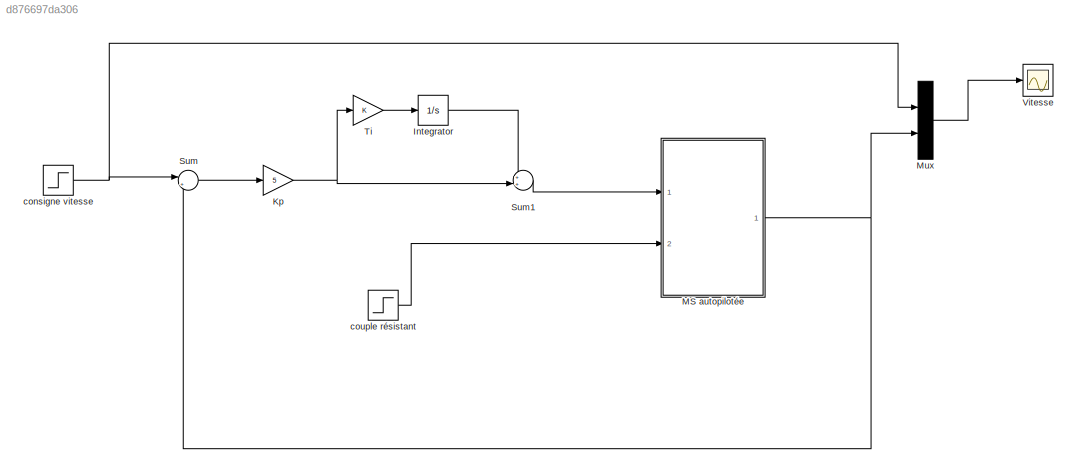
MODEL slx_d876697da306
KIND model
CONFIG AbsTol = auto
CONFIG EnableMultiTasking = off
CONFIG FixedStep = auto
CONFIG InitFcn = TP3_config
CONFIG MaxStep = auto
CONFIG MinStep = auto
CONFIG RelTol = 1e-3
CONFIG SampleTimeConstraint = Unconstrained
CONFIG Solver = ode23t
CONFIG SolverName = ode23t
CONFIG StartTime = 0.0
CONFIG StopTime = 30
BLOCK [Integrator] Integrator
  Ports = [1, 1]
BLOCK [Gain] Kp 
  Gain = 5
  OutDataTypeStr = Inherit: Inherit via internal rule
  ParamDataTypeStr = Inherit: Inherit via internal rule
  SaturateOnIntegerOverflow = off
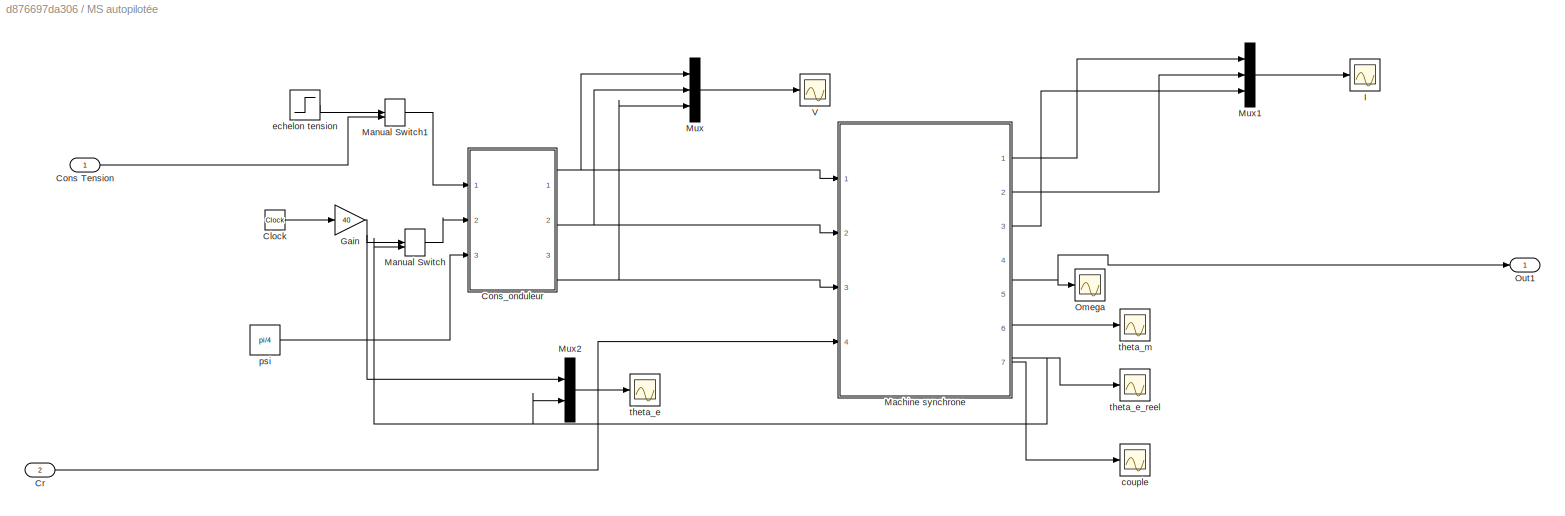
BLOCK [SubSystem] MS autopilotée
  Ports = [2, 1]
  RequestExecContextInheritance = off
  Variant = off
BLOCK [Clock] MS autopilotée/Clock
BLOCK [Inport] MS autopilotée/Cons Tension
  IconDisplay = Port number
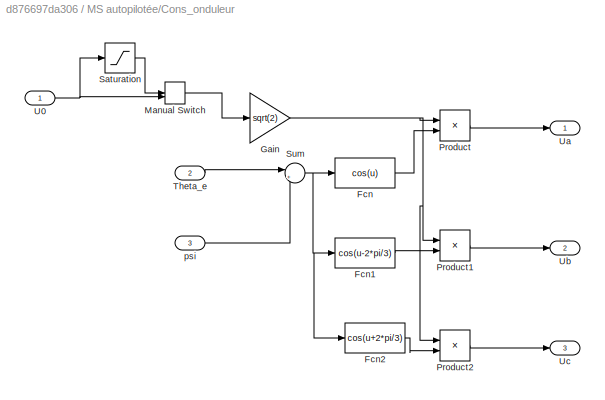
BLOCK [SubSystem] MS autopilotée/Cons_onduleur 
  Ports = [3, 3]
  RequestExecContextInheritance = off
  Variant = off
BLOCK [Fcn] MS autopilotée/Cons_onduleur /Fcn
  Expr = cos(u)
BLOCK [Fcn] MS autopilotée/Cons_onduleur /Fcn1
  Expr = cos(u-2*pi/3)
BLOCK [Fcn] MS autopilotée/Cons_onduleur /Fcn2
  Expr = cos(u+2*pi/3)
BLOCK [Gain] MS autopilotée/Cons_onduleur /Gain
  Gain = sqrt(2)
  OutDataTypeStr = Inherit: Inherit via internal rule
  ParamDataTypeStr = Inherit: Inherit via internal rule
  SaturateOnIntegerOverflow = off
BLOCK [ManualSwitch] MS autopilotée/Cons_onduleur /Manual Switch
BLOCK [Product] MS autopilotée/Cons_onduleur /Product
  InputSameDT = off
  OutDataTypeStr = Inherit: Inherit via internal rule
  Ports = [2, 1]
  RndMeth = Floor
  SaturateOnIntegerOverflow = off
BLOCK [Product] MS autopilotée/Cons_onduleur /Product1
  InputSameDT = off
  OutDataTypeStr = Inherit: Inherit via internal rule
  Ports = [2, 1]
  RndMeth = Floor
  SaturateOnIntegerOverflow = off
BLOCK [Product] MS autopilotée/Cons_onduleur /Product2
  InputSameDT = off
  OutDataTypeStr = Inherit: Inherit via internal rule
  Ports = [2, 1]
  RndMeth = Floor
  SaturateOnIntegerOverflow = off
BLOCK [Saturate] MS autopilotée/Cons_onduleur /Saturation
  InputPortMap = u0
  LowerLimit = -220
  Ports = [1, 1]
  UpperLimit = 220
BLOCK [Sum] MS autopilotée/Cons_onduleur /Sum
  IconShape = round
  InputSameDT = off
  Inputs = |+-
  OutDataTypeStr = Inherit: Inherit via internal rule
  Ports = [2, 1]
  SaturateOnIntegerOverflow = off
BLOCK [Inport] MS autopilotée/Cons_onduleur /Theta_e
  IconDisplay = Port number
  Port = 2
BLOCK [Inport] MS autopilotée/Cons_onduleur /U0
  IconDisplay = Port number
BLOCK [Outport] MS autopilotée/Cons_onduleur /Ua
  IconDisplay = Port number
BLOCK [Outport] MS autopilotée/Cons_onduleur /Ub
  IconDisplay = Port number
  Port = 2
BLOCK [Outport] MS autopilotée/Cons_onduleur /Uc
  IconDisplay = Port number
  Port = 3
BLOCK [Inport] MS autopilotée/Cons_onduleur /psi
  IconDisplay = Port number
  Port = 3
BLOCK [Inport] MS autopilotée/Cr
  IconDisplay = Port number
  Port = 2
BLOCK [Gain] MS autopilotée/Gain
  Gain = 40
  OutDataTypeStr = Inherit: Inherit via internal rule
  ParamDataTypeStr = Inherit: Inherit via internal rule
  SaturateOnIntegerOverflow = off
BLOCK [Scope] MS autopilotée/I
  NumInputPorts = 1
  Ports = [1]
  ScopeSpecificationString = Simulink.scopes.TimeScopeBlockCfg('CurrentConfiguration', extmgr.ConfigurationSet(extmgr.Configuration('Core','General UI',true),extmgr.Configuration('Core','Source UI',true),extmgr.Configuration('Sources','WiredSimulink',true,'DataLoggingVariableName','ScopeData3'),extmgr.Configuration('Visuals','Time Domain',true,'SerializedDisplays',{struct('MinYLimReal','-74.44182','MaxYLimReal','72.92075','YL...<+1484ch>
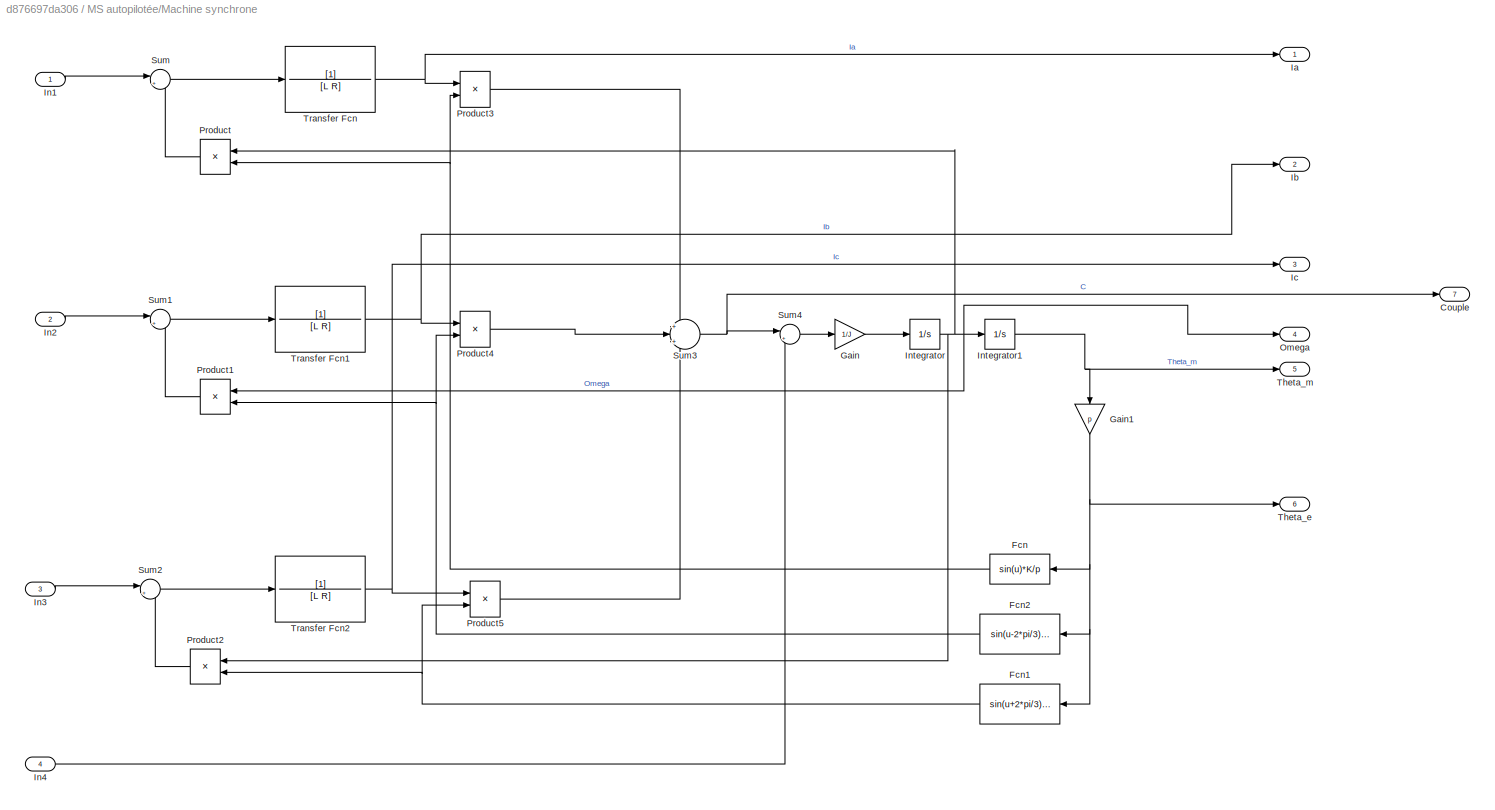
BLOCK [SubSystem] MS autopilotée/Machine synchrone
  Ports = [4, 7]
  RequestExecContextInheritance = off
  Variant = off
BLOCK [Outport] MS autopilotée/Machine synchrone/Couple
  IconDisplay = Port number
  Port = 7
BLOCK [Fcn] MS autopilotée/Machine synchrone/Fcn
  Expr = sin(u)*K/p
BLOCK [Fcn] MS autopilotée/Machine synchrone/Fcn1
  Expr = sin(u+2*pi/3)*K/p
BLOCK [Fcn] MS autopilotée/Machine synchrone/Fcn2
  Expr = sin(u-2*pi/3)*K/p
BLOCK [Gain] MS autopilotée/Machine synchrone/Gain
  Gain = 1/J
  OutDataTypeStr = Inherit: Inherit via internal rule
  ParamDataTypeStr = Inherit: Inherit via internal rule
  SaturateOnIntegerOverflow = off
BLOCK [Gain] MS autopilotée/Machine synchrone/Gain1
  Gain = p
  OutDataTypeStr = Inherit: Inherit via internal rule
  ParamDataTypeStr = Inherit: Inherit via internal rule
  SaturateOnIntegerOverflow = off
BLOCK [Outport] MS autopilotée/Machine synchrone/Ia
  IconDisplay = Port number
BLOCK [Outport] MS autopilotée/Machine synchrone/Ib
  IconDisplay = Port number
  Port = 2
BLOCK [Outport] MS autopilotée/Machine synchrone/Ic
  IconDisplay = Port number
  Port = 3
BLOCK [Inport] MS autopilotée/Machine synchrone/In1
  IconDisplay = Port number
BLOCK [Inport] MS autopilotée/Machine synchrone/In2
  IconDisplay = Port number
  Port = 2
BLOCK [Inport] MS autopilotée/Machine synchrone/In3
  IconDisplay = Port number
  Port = 3
BLOCK [Inport] MS autopilotée/Machine synchrone/In4
  IconDisplay = Port number
  Port = 4
BLOCK [Integrator] MS autopilotée/Machine synchrone/Integrator
  Ports = [1, 1]
BLOCK [Integrator] MS autopilotée/Machine synchrone/Integrator1
  Ports = [1, 1]
BLOCK [Outport] MS autopilotée/Machine synchrone/Omega
  IconDisplay = Port number
  Port = 4
BLOCK [Product] MS autopilotée/Machine synchrone/Product
  InputSameDT = off
  OutDataTypeStr = Inherit: Inherit via internal rule
  Ports = [2, 1]
  RndMeth = Floor
  SaturateOnIntegerOverflow = off
BLOCK [Product] MS autopilotée/Machine synchrone/Product1
  InputSameDT = off
  OutDataTypeStr = Inherit: Inherit via internal rule
  Ports = [2, 1]
  RndMeth = Floor
  SaturateOnIntegerOverflow = off
BLOCK [Product] MS autopilotée/Machine synchrone/Product2
  InputSameDT = off
  OutDataTypeStr = Inherit: Inherit via internal rule
  Ports = [2, 1]
  RndMeth = Floor
  SaturateOnIntegerOverflow = off
BLOCK [Product] MS autopilotée/Machine synchrone/Product3
  InputSameDT = off
  OutDataTypeStr = Inherit: Inherit via internal rule
  Ports = [2, 1]
  RndMeth = Floor
  SaturateOnIntegerOverflow = off
BLOCK [Product] MS autopilotée/Machine synchrone/Product4
  InputSameDT = off
  OutDataTypeStr = Inherit: Inherit via internal rule
  Ports = [2, 1]
  RndMeth = Floor
  SaturateOnIntegerOverflow = off
BLOCK [Product] MS autopilotée/Machine synchrone/Product5
  InputSameDT = off
  OutDataTypeStr = Inherit: Inherit via internal rule
  Ports = [2, 1]
  RndMeth = Floor
  SaturateOnIntegerOverflow = off
BLOCK [Sum] MS autopilotée/Machine synchrone/Sum
  IconShape = round
  InputSameDT = off
  Inputs = |+-
  OutDataTypeStr = Inherit: Inherit via internal rule
  Ports = [2, 1]
  SaturateOnIntegerOverflow = off
BLOCK [Sum] MS autopilotée/Machine synchrone/Sum1
  IconShape = round
  InputSameDT = off
  Inputs = |+-
  OutDataTypeStr = Inherit: Inherit via internal rule
  Ports = [2, 1]
  SaturateOnIntegerOverflow = off
BLOCK [Sum] MS autopilotée/Machine synchrone/Sum2
  IconShape = round
  InputSameDT = off
  Inputs = |+-
  OutDataTypeStr = Inherit: Inherit via internal rule
  Ports = [2, 1]
  SaturateOnIntegerOverflow = off
BLOCK [Sum] MS autopilotée/Machine synchrone/Sum3
  IconShape = round
  InputSameDT = off
  Inputs = +|+|+
  OutDataTypeStr = Inherit: Inherit via internal rule
  Ports = [3, 1]
  SaturateOnIntegerOverflow = off
BLOCK [Sum] MS autopilotée/Machine synchrone/Sum4
  IconShape = round
  InputSameDT = off
  Inputs = |+-
  OutDataTypeStr = Inherit: Inherit via internal rule
  Ports = [2, 1]
  SaturateOnIntegerOverflow = off
BLOCK [Outport] MS autopilotée/Machine synchrone/Theta_e 
  IconDisplay = Port number
  Port = 6
BLOCK [Outport] MS autopilotée/Machine synchrone/Theta_m
  IconDisplay = Port number
  Port = 5
BLOCK [TransferFcn] MS autopilotée/Machine synchrone/Transfer Fcn
  Denominator = [L R]
BLOCK [TransferFcn] MS autopilotée/Machine synchrone/Transfer Fcn1
  Denominator = [L R]
BLOCK [TransferFcn] MS autopilotée/Machine synchrone/Transfer Fcn2
  Denominator = [L R]
BLOCK [ManualSwitch] MS autopilotée/Manual Switch
  CurrentSetting = 0
BLOCK [ManualSwitch] MS autopilotée/Manual Switch1
  CurrentSetting = 0
BLOCK [Mux] MS autopilotée/Mux
  DisplayOption = bar
  Inputs = 3
  Ports = [3, 1]
BLOCK [Mux] MS autopilotée/Mux1
  DisplayOption = bar
  Inputs = 3
  Ports = [3, 1]
BLOCK [Mux] MS autopilotée/Mux2
  DisplayOption = bar
  Inputs = 2
  Ports = [2, 1]
BLOCK [Scope] MS autopilotée/Omega
  NumInputPorts = 1
  Ports = [1]
  ScopeSpecificationString = Simulink.scopes.TimeScopeBlockCfg('CurrentConfiguration', extmgr.ConfigurationSet(extmgr.Configuration('Core','General UI',true),extmgr.Configuration('Core','Source UI',true),extmgr.Configuration('Sources','WiredSimulink',true,'DataLoggingVariableName','ScopeData1'),extmgr.Configuration('Visuals','Time Domain',true,'SerializedDisplays',{struct('MinYLimReal','-1.27685','MaxYLimReal','11.49163','YLa...<+1413ch>
BLOCK [Outport] MS autopilotée/Out1
  IconDisplay = Port number
BLOCK [Scope] MS autopilotée/V
  NumInputPorts = 1
  Ports = [1]
  ScopeSpecificationString = Simulink.scopes.TimeScopeBlockCfg('CurrentConfiguration', extmgr.ConfigurationSet(extmgr.Configuration('Core','General UI',true),extmgr.Configuration('Core','Source UI',true),extmgr.Configuration('Sources','WiredSimulink',true,'DataLoggingVariableName','ScopeData5'),extmgr.Configuration('Visuals','Time Domain',true,'SerializedDisplays',{struct('MinYLimReal','-83.60297','MaxYLimReal','69.04024','YL...<+1472ch>
BLOCK [Scope] MS autopilotée/couple
  NumInputPorts = 1
  Ports = [1]
  ScopeSpecificationString = Simulink.scopes.TimeScopeBlockCfg('CurrentConfiguration', extmgr.ConfigurationSet(extmgr.Configuration('Core','General UI',true),extmgr.Configuration('Core','Source UI',true),extmgr.Configuration('Sources','WiredSimulink',true,'DataLoggingVariableName','ScopeData2'),extmgr.Configuration('Visuals','Time Domain',true,'SerializedDisplays',{struct('MinYLimReal','-0.07436','MaxYLimReal','0.66861','YLab...<+1405ch>
BLOCK [Step] MS autopilotée/echelon tension
  SampleTime = 0
  Time = 0
BLOCK [Constant] MS autopilotée/psi
  Value = pi/4
BLOCK [Scope] MS autopilotée/theta_e
  NumInputPorts = 1
  Ports = [1]
  ScopeSpecificationString = Simulink.scopes.TimeScopeBlockCfg('CurrentConfiguration', extmgr.ConfigurationSet(extmgr.Configuration('Core','General UI',true),extmgr.Configuration('Core','Source UI',true),extmgr.Configuration('Sources','WiredSimulink',true,'DataLoggingVariableName','ScopeData2'),extmgr.Configuration('Visuals','Time Domain',true,'SerializedDisplays',{struct('MinYLimReal','-149.96844','MaxYLimReal','1349.71592',...<+1454ch>
BLOCK [Scope] MS autopilotée/theta_e_reel
  NumInputPorts = 1
  Ports = [1]
  ScopeSpecificationString = Simulink.scopes.TimeScopeBlockCfg('CurrentConfiguration', extmgr.ConfigurationSet(extmgr.Configuration('Core','General UI',true),extmgr.Configuration('Core','Source UI',true),extmgr.Configuration('Sources','WiredSimulink',true,'DataLoggingVariableName','ScopeData1'),extmgr.Configuration('Visuals','Time Domain',true,'SerializedDisplays',{struct('MinYLimReal','-109.84554','MaxYLimReal','988.60987','...<+1419ch>
BLOCK [Scope] MS autopilotée/theta_m
  NumInputPorts = 1
  Ports = [1]
  ScopeSpecificationString = Simulink.scopes.TimeScopeBlockCfg('CurrentConfiguration', extmgr.ConfigurationSet(extmgr.Configuration('Core','General UI',true),extmgr.Configuration('Core','Source UI',true),extmgr.Configuration('Sources','WiredSimulink',true),extmgr.Configuration('Visuals','Time Domain',true,'SerializedDisplays',{struct('MinYLimReal','-10.45354','MaxYLimReal','94.08186','YLabelReal','','MinYLimMag','0.00000','Ma...<+1351ch>
BLOCK [Mux] Mux
  DisplayOption = bar
  Inputs = 2
  Ports = [2, 1]
BLOCK [Sum] Sum
  IconShape = round
  InputSameDT = off
  Inputs = |+-
  OutDataTypeStr = Inherit: Inherit via internal rule
  Ports = [2, 1]
  SaturateOnIntegerOverflow = off
BLOCK [Sum] Sum1
  IconShape = round
  InputSameDT = off
  Inputs = ++|
  OutDataTypeStr = Inherit: Inherit via internal rule
  Ports = [2, 1]
  SaturateOnIntegerOverflow = off
BLOCK [Gain] Ti 
  OutDataTypeStr = Inherit: Inherit via internal rule
  ParamDataTypeStr = Inherit: Inherit via internal rule
  SaturateOnIntegerOverflow = off
BLOCK [Scope] Vitesse
  NumInputPorts = 1
  Ports = [1]
  ScopeSpecificationString = Simulink.scopes.TimeScopeBlockCfg('CurrentConfiguration', extmgr.ConfigurationSet(extmgr.Configuration('Core','General UI',true),extmgr.Configuration('Core','Source UI',true),extmgr.Configuration('Sources','WiredSimulink',true,'DataLoggingVariableName','ScopeData3'),extmgr.Configuration('Visuals','Time Domain',true,'SerializedDisplays',{struct('MinYLimReal','-1.27685','MaxYLimReal','11.49163','YLa...<+1449ch>
BLOCK [Step] consigne vitesse
  After = 10
  SampleTime = 0
  Time = 0
BLOCK [Step] couple résistant
  After = 20
  SampleTime = 0
  Time = 3
LINE Integrator:1 -> Sum1:1
NET Kp :1 -> Sum1:2, Ti :1
LINE MS autopilotée/Clock:1 -> MS autopilotée/Gain:1
LINE MS autopilotée/Cons Tension:1 -> MS autopilotée/Manual Switch1:2
LINE MS autopilotée/Cons_onduleur /Fcn1:1 -> MS autopilotée/Cons_onduleur /Product1:2
LINE MS autopilotée/Cons_onduleur /Fcn2:1 -> MS autopilotée/Cons_onduleur /Product2:2
LINE MS autopilotée/Cons_onduleur /Fcn:1 -> MS autopilotée/Cons_onduleur /Product:2
NET MS autopilotée/Cons_onduleur /Gain:1 -> MS autopilotée/Cons_onduleur /Product1:1, MS autopilotée/Cons_onduleur /Product2:1, MS autopilotée/Cons_onduleur /Product:1
LINE MS autopilotée/Cons_onduleur /Manual Switch:1 -> MS autopilotée/Cons_onduleur /Gain:1
LINE MS autopilotée/Cons_onduleur /Product1:1 -> MS autopilotée/Cons_onduleur /Ub:1
LINE MS autopilotée/Cons_onduleur /Product2:1 -> MS autopilotée/Cons_onduleur /Uc:1
LINE MS autopilotée/Cons_onduleur /Product:1 -> MS autopilotée/Cons_onduleur /Ua:1
LINE MS autopilotée/Cons_onduleur /Saturation:1 -> MS autopilotée/Cons_onduleur /Manual Switch:1
NET MS autopilotée/Cons_onduleur /Sum:1 -> MS autopilotée/Cons_onduleur /Fcn1:1, MS autopilotée/Cons_onduleur /Fcn2:1, MS autopilotée/Cons_onduleur /Fcn:1
LINE MS autopilotée/Cons_onduleur /Theta_e:1 -> MS autopilotée/Cons_onduleur /Sum:1
NET MS autopilotée/Cons_onduleur /U0:1 -> MS autopilotée/Cons_onduleur /Manual Switch:2, MS autopilotée/Cons_onduleur /Saturation:1
LINE MS autopilotée/Cons_onduleur /psi:1 -> MS autopilotée/Cons_onduleur /Sum:2
NET MS autopilotée/Cons_onduleur :1 -> MS autopilotée/Machine synchrone:1, MS autopilotée/Mux:1
NET MS autopilotée/Cons_onduleur :2 -> MS autopilotée/Machine synchrone:2, MS autopilotée/Mux:2
NET MS autopilotée/Cons_onduleur :3 -> MS autopilotée/Machine synchrone:3, MS autopilotée/Mux:3
LINE MS autopilotée/Cr:1 -> MS autopilotée/Machine synchrone:4
NET MS autopilotée/Gain:1 -> MS autopilotée/Manual Switch:1, MS autopilotée/Mux2:1
NET MS autopilotée/Machine synchrone/Fcn1:1 -> MS autopilotée/Machine synchrone/Product2:2, MS autopilotée/Machine synchrone/Product5:2
NET MS autopilotée/Machine synchrone/Fcn2:1 -> MS autopilotée/Machine synchrone/Product1:2, MS autopilotée/Machine synchrone/Product4:2
NET MS autopilotée/Machine synchrone/Fcn:1 -> MS autopilotée/Machine synchrone/Product3:2, MS autopilotée/Machine synchrone/Product:2
NET MS autopilotée/Machine synchrone/Gain1:1 -> MS autopilotée/Machine synchrone/Fcn1:1, MS autopilotée/Machine synchrone/Fcn2:1, MS autopilotée/Machine synchrone/Fcn:1, MS autopilotée/Machine synchrone/Theta_e :1
LINE MS autopilotée/Machine synchrone/Gain:1 -> MS autopilotée/Machine synchrone/Integrator:1
LINE MS autopilotée/Machine synchrone/In1:1 -> MS autopilotée/Machine synchrone/Sum:1
LINE MS autopilotée/Machine synchrone/In2:1 -> MS autopilotée/Machine synchrone/Sum1:1
LINE MS autopilotée/Machine synchrone/In3:1 -> MS autopilotée/Machine synchrone/Sum2:1
LINE MS autopilotée/Machine synchrone/In4:1 -> MS autopilotée/Machine synchrone/Sum4:2
NET MS autopilotée/Machine synchrone/Integrator1:1 -> MS autopilotée/Machine synchrone/Gain1:1, MS autopilotée/Machine synchrone/Theta_m:1
NET MS autopilotée/Machine synchrone/Integrator:1 -> MS autopilotée/Machine synchrone/Integrator1:1, MS autopilotée/Machine synchrone/Omega:1, MS autopilotée/Machine synchrone/Product1:1, MS autopilotée/Machine synchrone/Product2:1, MS autopilotée/Machine synchrone/Product:1
LINE MS autopilotée/Machine synchrone/Product1:1 -> MS autopilotée/Machine synchrone/Sum1:2
LINE MS autopilotée/Machine synchrone/Product2:1 -> MS autopilotée/Machine synchrone/Sum2:2
LINE MS autopilotée/Machine synchrone/Product3:1 -> MS autopilotée/Machine synchrone/Sum3:1
LINE MS autopilotée/Machine synchrone/Product4:1 -> MS autopilotée/Machine synchrone/Sum3:2
LINE MS autopilotée/Machine synchrone/Product5:1 -> MS autopilotée/Machine synchrone/Sum3:3
LINE MS autopilotée/Machine synchrone/Product:1 -> MS autopilotée/Machine synchrone/Sum:2
LINE MS autopilotée/Machine synchrone/Sum1:1 -> MS autopilotée/Machine synchrone/Transfer Fcn1:1
LINE MS autopilotée/Machine synchrone/Sum2:1 -> MS autopilotée/Machine synchrone/Transfer Fcn2:1
NET MS autopilotée/Machine synchrone/Sum3:1 -> MS autopilotée/Machine synchrone/Couple:1, MS autopilotée/Machine synchrone/Sum4:1
LINE MS autopilotée/Machine synchrone/Sum4:1 -> MS autopilotée/Machine synchrone/Gain:1
LINE MS autopilotée/Machine synchrone/Sum:1 -> MS autopilotée/Machine synchrone/Transfer Fcn:1
NET MS autopilotée/Machine synchrone/Transfer Fcn1:1 -> MS autopilotée/Machine synchrone/Ib:1, MS autopilotée/Machine synchrone/Product4:1
NET MS autopilotée/Machine synchrone/Transfer Fcn2:1 -> MS autopilotée/Machine synchrone/Ic:1, MS autopilotée/Machine synchrone/Product5:1
NET MS autopilotée/Machine synchrone/Transfer Fcn:1 -> MS autopilotée/Machine synchrone/Ia:1, MS autopilotée/Machine synchrone/Product3:1
LINE MS autopilotée/Machine synchrone:1 -> MS autopilotée/Mux1:1
LINE MS autopilotée/Machine synchrone:2 -> MS autopilotée/Mux1:2
LINE MS autopilotée/Machine synchrone:3 -> MS autopilotée/Mux1:3
NET MS autopilotée/Machine synchrone:4 -> MS autopilotée/Omega:1, MS autopilotée/Out1:1
LINE MS autopilotée/Machine synchrone:5 -> MS autopilotée/theta_m:1
NET MS autopilotée/Machine synchrone:6 -> MS autopilotée/Manual Switch:2, MS autopilotée/Mux2:2, MS autopilotée/theta_e_reel:1
LINE MS autopilotée/Machine synchrone:7 -> MS autopilotée/couple:1
LINE MS autopilotée/Manual Switch1:1 -> MS autopilotée/Cons_onduleur :1
LINE MS autopilotée/Manual Switch:1 -> MS autopilotée/Cons_onduleur :2
LINE MS autopilotée/Mux1:1 -> MS autopilotée/I:1
LINE MS autopilotée/Mux2:1 -> MS autopilotée/theta_e:1
LINE MS autopilotée/Mux:1 -> MS autopilotée/V:1
LINE MS autopilotée/echelon tension:1 -> MS autopilotée/Manual Switch1:1
LINE MS autopilotée/psi:1 -> MS autopilotée/Cons_onduleur :3
NET MS autopilotée:1 -> Mux:2, Sum:2
LINE Mux:1 -> Vitesse:1
LINE Sum1:1 -> MS autopilotée:1
LINE Sum:1 -> Kp :1
LINE Ti :1 -> Integrator:1
NET consigne vitesse:1 -> Mux:1, Sum:1
LINE couple résistant:1 -> MS autopilotée:2
note: NET lines group one-source signal fan-out (src -> all destinations, sorted); 1:1 wires keep LINE
